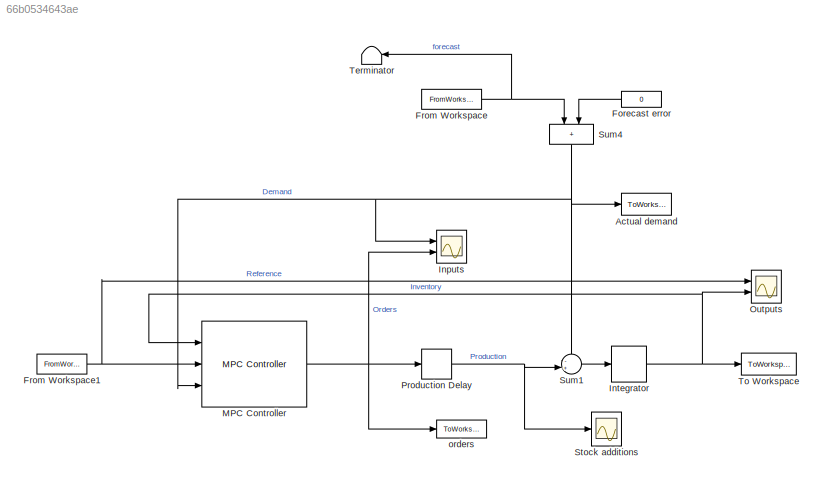
MODEL slx_66b0534643ae
KIND model
CONFIG AbsTol = 1e-6
CONFIG EnableMultiTasking = off
CONFIG FixedStep = auto
CONFIG MaxStep = auto
CONFIG MinStep = auto
CONFIG RelTol = 1e-3
CONFIG SampleTimeConstraint = Unconstrained
CONFIG SolverName = ode15s
CONFIG StartTime = 0.0
CONFIG StopTime = 250
BLOCK [ToWorkspace] Actual demand
  MaxDataPoints = inf
  Ports = [1]
  SampleTime = Ts
  VariableName = d
BLOCK [Constant] Forecast error
  Value = 0
BLOCK [FromWorkspace] From Workspace
  SampleTime = Ts
  VariableName = df_sim
BLOCK [FromWorkspace] From Workspace1
  SampleTime = Ts
  VariableName = r_sim
BLOCK [Scope] Inputs
  Floating = off
  NumInputPorts = 2
  Ports = [2]
  ScopeSpecificationString = Simulink.scopes.TimeScopeBlockCfg('CurrentConfiguration', extmgr.ConfigurationSet(extmgr.Configuration('Core','General UI',true,'FigureColor',[1 1 1]),extmgr.Configuration('Core','Source UI',true),extmgr.Configuration('Sources','WiredSimulink',true,'DataLoggingVariableName','ScopeData1'),extmgr.Configuration('Visuals','Time Domain',true,'PlotType','Stairs','SerializedDisplays',{struct('MinYLimReal...<+1962ch>
BLOCK [DiscreteIntegrator] Integrator
  ICPrevOutput = DiscIntNeverNeededParam
  ICPrevScaledInput = DiscIntNeverNeededParam
  InitialCondition = I_init
  InitialConditionSetting = Auto
  IntegratorMethod = Integration: Backward Euler
  Ports = [1, 1]
  SampleTime = -1
  gainval = 1
BLOCK [Reference] MPC Controller  REF=mpclib/MPC Controller  (lib defined in mdl_ae329e0e0455)
  Ports = [3, 1]
  SCDEnableBlockLinearizationSpecification = on
  SourceBlock = mpclib/MPC Controller
  SourceProductBaseCode = MP
  SourceType = MPC
BLOCK [Scope] Outputs
  Floating = off
  NumInputPorts = 2
  Ports = [2]
  ScopeSpecificationString = Simulink.scopes.TimeScopeBlockCfg('CurrentConfiguration', extmgr.ConfigurationSet(extmgr.Configuration('Core','General UI',true,'FigureColor',[1 1 1]),extmgr.Configuration('Core','Source UI',true),extmgr.Configuration('Sources','WiredSimulink',true),extmgr.Configuration('Visuals','Time Domain',true,'PlotType','Stairs','SerializedDisplays',{struct('MinYLimReal','-48022.3079','MaxYLimReal','33873.92...<+1882ch>
BLOCK [TransportDelay] Production Delay
  DelayTime = thetap2
  InitialOutput = PA_init
  Ports = [1, 1]
BLOCK [Scope] Stock additions
  Floating = off
  NumInputPorts = 1
  Ports = [1]
  ScopeSpecificationString = Simulink.scopes.TimeScopeBlockCfg('CurrentConfiguration', extmgr.ConfigurationSet(extmgr.Configuration('Core','General UI',true,'FigureColor',[1 1 1]),extmgr.Configuration('Core','Source UI',true),extmgr.Configuration('Sources','WiredSimulink',true,'DataLoggingVariableName','ScopeData1'),extmgr.Configuration('Visuals','Time Domain',true,'PlotType','Stairs','SerializedDisplays',{struct('MinYLimReal...<+1957ch>
BLOCK [Sum] Sum1
  Inputs = -+|
  Ports = [2, 1]
BLOCK [Sum] Sum4
  IconShape = rectangular
  InputSameDT = on
  NameLocation = left
  OutDataTypeStr = Inherit: Same as first input
  Ports = [2, 1]
  SaturateOnIntegerOverflow = on
BLOCK [Terminator] Terminator
BLOCK [ToWorkspace] To Workspace
  MaxDataPoints = inf
  Ports = [1]
  SampleTime = Ts
  VariableName = y
BLOCK [ToWorkspace] orders
  MaxDataPoints = inf
  Ports = [1]
  SampleTime = Ts
  VariableName = u
LINE Forecast error:1 -> Sum4:2
NET From Workspace1:1 -> MPC Controller:2, Outputs:1
NET From Workspace:1 -> Sum4:1, Terminator:1
NET Integrator:1 -> MPC Controller:1, Outputs:2, To Workspace:1
NET MPC Controller:1 -> Inputs:2, Production Delay:1, orders:1
NET Production Delay:1 -> Stock additions:1, Sum1:2
LINE Sum1:1 -> Integrator:1
NET Sum4:1 -> Actual demand:1, Inputs:1, MPC Controller:3, Sum1:1
note: NET lines group one-source signal fan-out (src -> all destinations, sorted); 1:1 wires keep LINE
